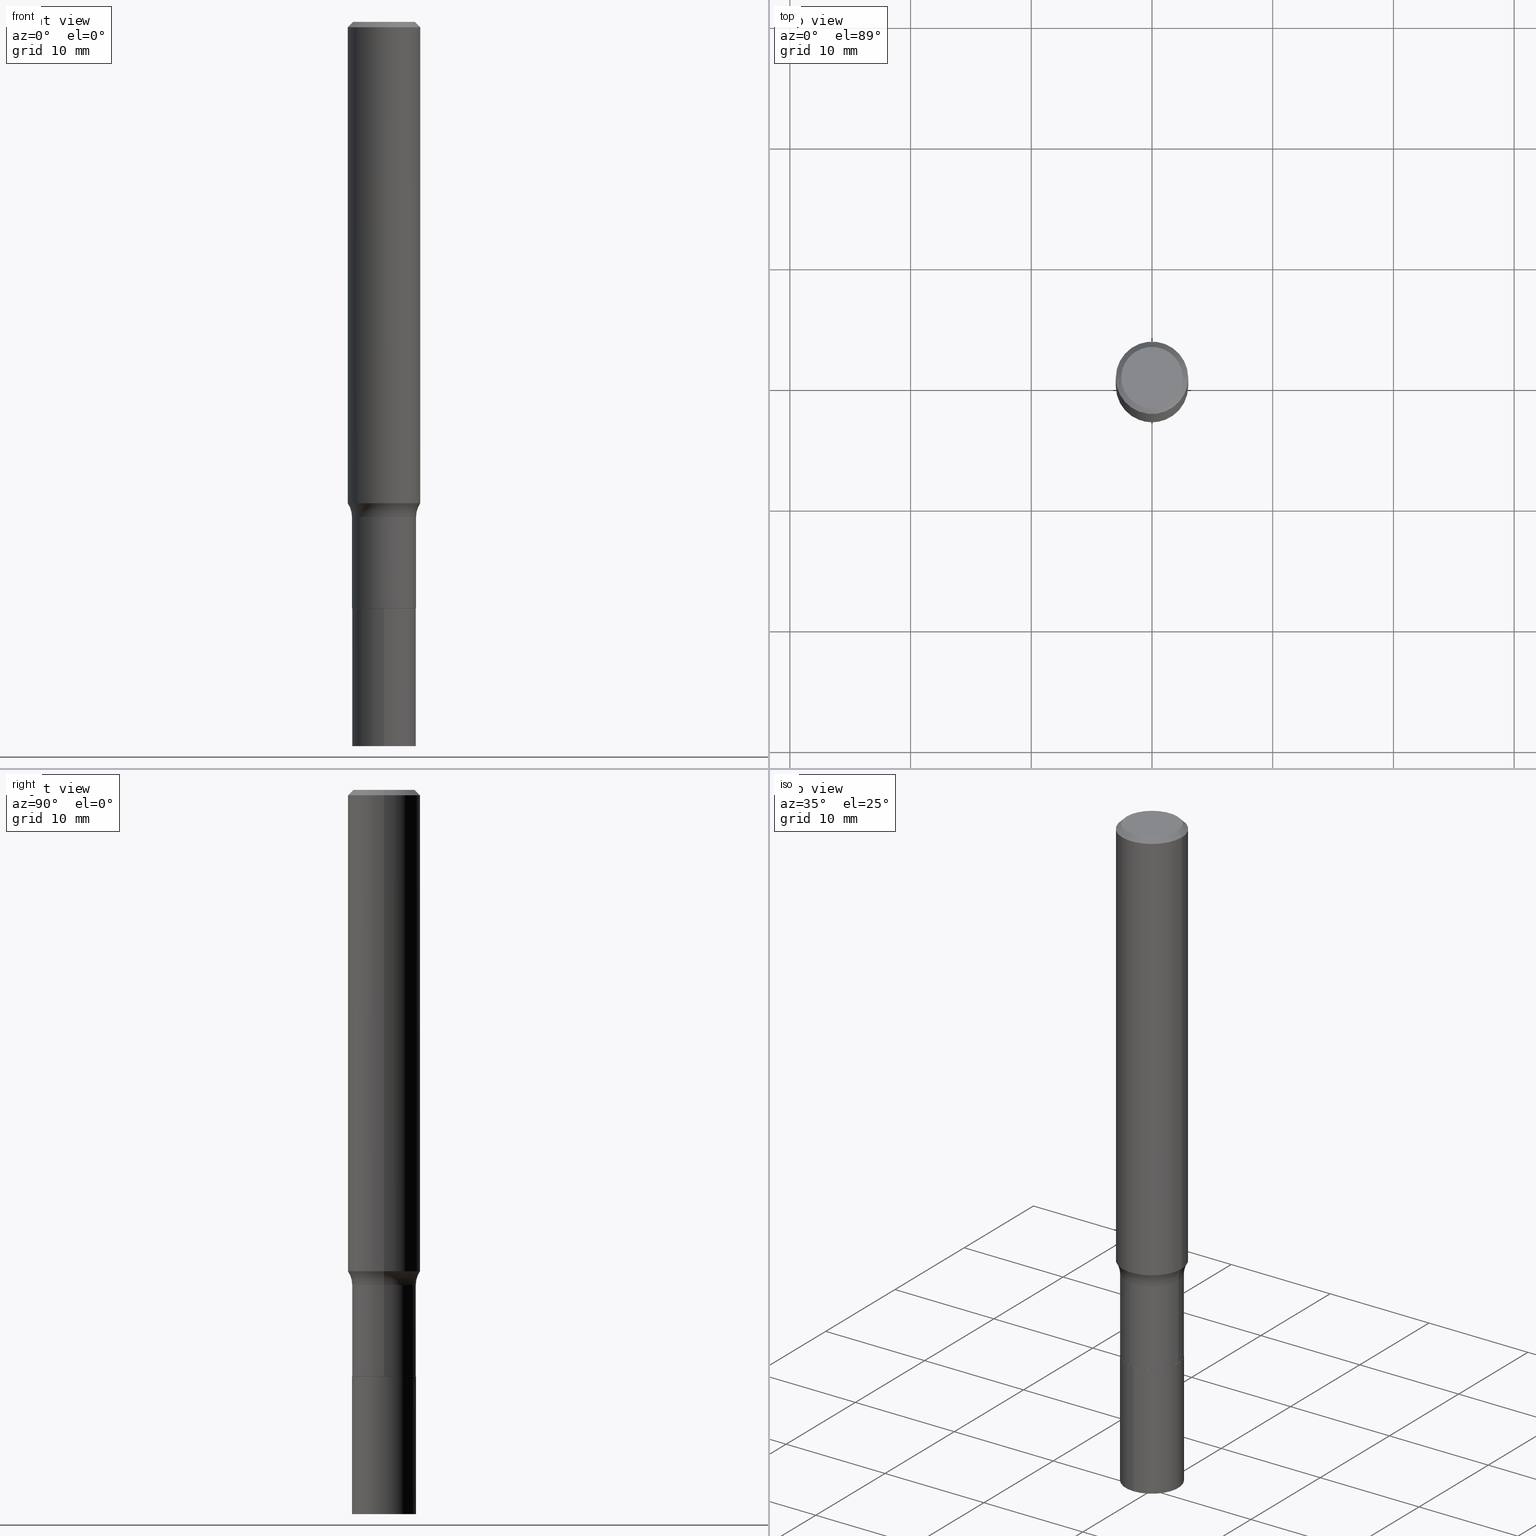
[diagram: canonical four-view strip — front | top / right | iso, engineering-drawing reading convention]
A machine part, canonical four-view strip (front | top / right | iso — engineering-drawing reading convention). The complete STEP part file that produces these views, byte-faithful:
ISO-10303-21;
HEADER;
FILE_DESCRIPTION (( 'STEP AP203' ),
    '1' );
FILE_NAME ('58507.STEP',
    '2024-04-19T14:40:32',
    ( '' ),
    ( '' ),
    'SwSTEP 2.0',
    'SolidWorks 2023',
    '' );
FILE_SCHEMA (( 'CONFIG_CONTROL_DESIGN' ));
ENDSEC;

DATA;
#1 = DIRECTION ( 'NONE',  ( -2.445468806185136597E-29, 3.491481338843145583E-15, 1.000000000000000000 ) ) ;
#2 = ADVANCED_FACE ( 'NONE', ( #59 ), #193, .T. ) ;
#3 = AXIS2_PLACEMENT_3D ( 'NONE', #374, #48, #163 ) ;
#4 = PERSON_AND_ORGANIZATION_ROLE ( 'creator' ) ;
#5 = CARTESIAN_POINT ( 'NONE',  ( 4.332147990156996744E-31, -6.185159191760670395E-17, -0.01771500000000010913 ) ) ;
#6 = SHAPE_DEFINITION_REPRESENTATION ( #417, #340 ) ;
#7 = CARTESIAN_POINT ( 'NONE',  ( -0.1180999999999999966, -1.932900039203968649E-15, -0.01771500000000010913 ) ) ;
#8 = CARTESIAN_POINT ( 'NONE',  ( -0.1180999999999999966, 7.628363003171413738E-16, -0.01771500000000010913 ) ) ;
#9 = LOCAL_TIME ( 10, 40, 32.00000000000000000, #76 ) ;
#10 = DIRECTION ( 'NONE',  ( -2.445468806185136877E-29, 3.491481338843145188E-15, 1.000000000000000000 ) ) ;
#11 = DIRECTION ( 'NONE',  ( 1.000000000000000000, -6.982962677686265922E-15, 4.876176775795935793E-29 ) ) ;
#12 = EDGE_LOOP ( 'NONE', ( #275, #68, #190, #373 ) ) ;
#13 = CARTESIAN_POINT ( 'NONE',  ( 0.1039999999999999813, -7.406130215954078619E-15, -1.913200000000000234 ) ) ;
#14 = ORIENTED_EDGE ( 'NONE', *, *, #376, .T. ) ;
#15 = DIRECTION ( 'NONE',  ( -2.445468806185136597E-29, 3.491481338843145583E-15, 1.000000000000000000 ) ) ;
#16 = CC_DESIGN_APPROVAL ( #446, ( #339 ) ) ;
#17 = ORIENTED_EDGE ( 'NONE', *, *, #419, .T. ) ;
#18 = EDGE_CURVE ( 'NONE', #212, #413, #101, .T. ) ;
#19 = FACE_OUTER_BOUND ( 'NONE', #106, .T. ) ;
#20 = VECTOR ( 'NONE', #31, 39.37007874015748143 ) ;
#21 = ORIENTED_EDGE ( 'NONE', *, *, #51, .F. ) ;
#22 =( NAMED_UNIT ( * ) PLANE_ANGLE_UNIT ( ) SI_UNIT ( $, .RADIAN. ) );
#23 = CARTESIAN_POINT ( 'NONE',  ( -0.1039999999999999813, -5.940937652284203041E-15, -1.913200000000000234 ) ) ;
#24 = DIRECTION ( 'NONE',  ( 1.000000000000000000, -6.982962677686266711E-15, 4.875668750515085695E-29 ) ) ;
#25 = VERTEX_POINT ( 'NONE', #312 ) ;
#26 = MECHANICAL_CONTEXT ( 'NONE', #153, 'mechanical' ) ;
#27 = CIRCLE ( 'NONE', #348, 0.1181000000000001909 ) ;
#28 = EDGE_LOOP ( 'NONE', ( #88, #95, #353, #97 ) ) ;
#29 = CIRCLE ( 'NONE', #329, 0.08000000000000002942 ) ;
#30 = EDGE_LOOP ( 'NONE', ( #343, #233, #320, #140 ) ) ;
#31 = DIRECTION ( 'NONE',  ( -2.445468806185136877E-29, 3.491481338843145188E-15, 1.000000000000000000 ) ) ;
#32 = EDGE_CURVE ( 'NONE', #425, #138, #127, .T. ) ;
#33 = COORDINATED_UNIVERSAL_TIME_OFFSET ( 5, 0, .BEHIND. ) ;
#34 = CARTESIAN_POINT ( 'NONE',  ( 3.839823590373551639E-29, -5.482250428355689861E-15, -1.570178928744370150 ) ) ;
#35 = AXIS2_PLACEMENT_3D ( 'NONE', #75, #1, #401 ) ;
#36 = EDGE_CURVE ( 'NONE', #208, #425, #259, .T. ) ;
#37 = LOCAL_TIME ( 10, 40, 32.00000000000000000, #326 ) ;
#38 = PERSON_AND_ORGANIZATION_ROLE ( 'design_supplier' ) ;
#39 = DIRECTION ( 'NONE',  ( -2.445468806185136597E-29, 3.491481338843145583E-15, 1.000000000000000000 ) ) ;
#40 = CC_DESIGN_DATE_AND_TIME_ASSIGNMENT ( #262, #431, ( #339 ) ) ;
#41 = DATE_AND_TIME ( #284, #427 ) ;
#42 = DIRECTION ( 'NONE',  ( -6.982962677686266711E-15, -1.000000000000000000, 3.491481338843145583E-15 ) ) ;
#43 = APPLICATION_CONTEXT ( 'configuration controlled 3d designs of mechanical parts and assemblies' ) ;
#44 = CARTESIAN_POINT ( 'NONE',  ( 0.000000000000000000, 0.000000000000000000, 0.000000000000000000 ) ) ;
#45 = VECTOR ( 'NONE', #145, 39.37007874015748143 ) ;
#46 = DIRECTION ( 'NONE',  ( 1.000000000000000000, -6.982962677686269077E-15, 0.000000000000000000 ) ) ;
#47 = ORIENTED_EDGE ( 'NONE', *, *, #18, .T. ) ;
#48 = DIRECTION ( 'NONE',  ( -2.445468806185136597E-29, 3.491481338843145583E-15, 1.000000000000000000 ) ) ;
#49 = ORIENTED_EDGE ( 'NONE', *, *, #331, .F. ) ;
#50 = DIRECTION ( 'NONE',  ( -2.445468806185136597E-29, 3.491481338843145583E-15, 1.000000000000000000 ) ) ;
#51 = EDGE_CURVE ( 'NONE', #25, #135, #176, .T. ) ;
#52 = VECTOR ( 'NONE', #10, 39.37007874015748143 ) ;
#53 = DIRECTION ( 'NONE',  ( -2.426571974108162816E-29, 3.518542677918260450E-15, 1.000000000000000000 ) ) ;
#54 = EDGE_LOOP ( 'NONE', ( #387, #205, #375, #355 ) ) ;
#55 = PRODUCT_RELATED_PRODUCT_CATEGORY ( 'detail', '', ( #222 ) ) ;
#56 = CARTESIAN_POINT ( 'NONE',  ( 4.678670919993403663E-29, -6.679902097474707102E-15, -1.913200000000000234 ) ) ;
#57 = LINE ( 'NONE', #238, #204 ) ;
#58 = EDGE_CURVE ( 'NONE', #334, #174, #29, .T. ) ;
#59 = FACE_OUTER_BOUND ( 'NONE', #54, .T. ) ;
#60 = AXIS2_PLACEMENT_3D ( 'NONE', #436, #254, #225 ) ;
#61 = DIRECTION ( 'NONE',  ( -2.445468806185136597E-29, 3.491481338843145583E-15, 1.000000000000000000 ) ) ;
#62 = ORIENTED_EDGE ( 'NONE', *, *, #368, .T. ) ;
#63 = PRODUCT_DEFINITION ( 'UNKNOWN', '', #151, #351 ) ;
#64 = DIRECTION ( 'NONE',  ( 0.7071067811866320607, -2.468850131083142557E-15, 0.7071067811864629737 ) ) ;
#65 = DIRECTION ( 'NONE',  ( 1.000000000000000000, -6.982962677686266711E-15, 0.000000000000000000 ) ) ;
#66 = PERSON ( 'UNSPECIFIED', 'UNSPECIFIED', 'UNSPECIFIED', ('UNSPECIFIED'), ('UNSPECIFIED'), ('UNSPECIFIED') ) ;
#67 = LENGTH_MEASURE_WITH_UNIT ( LENGTH_MEASURE( 0.02539999999999999897 ), #203 );
#68 = ORIENTED_EDGE ( 'NONE', *, *, #141, .T. ) ;
#69 = EDGE_CURVE ( 'NONE', #208, #395, #142, .T. ) ;
#70 = CARTESIAN_POINT ( 'NONE',  ( 0.1044999999999999540, -6.367763665782127275E-15, -1.614800000000000457 ) ) ;
#71 = ORIENTED_EDGE ( 'NONE', *, *, #121, .T. ) ;
#72 = AXIS2_PLACEMENT_3D ( 'NONE', #423, #313, #98 ) ;
#73 = DIRECTION ( 'NONE',  ( -6.982962677686265922E-15, -1.000000000000000000, 3.518542677918260450E-15 ) ) ;
#74 = PERSON_AND_ORGANIZATION_ROLE ( 'design_owner' ) ;
#75 = CARTESIAN_POINT ( 'NONE',  ( 3.948943028227760097E-29, -5.638044065963912751E-15, -1.614800000000000457 ) ) ;
#76 = COORDINATED_UNIVERSAL_TIME_OFFSET ( 5, 0, .BEHIND. ) ;
#77 = FACE_OUTER_BOUND ( 'NONE', #197, .T. ) ;
#78 = CALENDAR_DATE ( 2024, 19, 4 ) ;
#79 = CARTESIAN_POINT ( 'NONE',  ( -0.1039999999999999813, -5.938288425110091840E-15, -1.913200000000000234 ) ) ;
#80 = CARTESIAN_POINT ( 'NONE',  ( 0.1044999999999999679, -7.297195998182146228E-16, 5.095604730706752119E-30 ) ) ;
#81 = EDGE_CURVE ( 'NONE', #319, #212, #426, .T. ) ;
#82 = FACE_OUTER_BOUND ( 'NONE', #389, .T. ) ;
#83 = AXIS2_PLACEMENT_3D ( 'NONE', #263, #291, #227 ) ;
#84 = ORGANIZATION ( 'UNSPECIFIED', 'UNSPECIFIED', '' ) ;
#85 = DIRECTION ( 'NONE',  ( -2.445468806185136597E-29, 3.491481338843145583E-15, 1.000000000000000000 ) ) ;
#86 = ADVANCED_FACE ( 'NONE', ( #77 ), #434, .F. ) ;
#87 = DIRECTION ( 'NONE',  ( 1.000000000000000000, -6.982962677686269077E-15, 0.000000000000000000 ) ) ;
#88 = ORIENTED_EDGE ( 'NONE', *, *, #459, .T. ) ;
#89 = CARTESIAN_POINT ( 'NONE',  ( 3.507850874923593654E-46, -5.008281372579124849E-32, -1.434428795841294606E-17 ) ) ;
#90 = CC_DESIGN_PERSON_AND_ORGANIZATION_ASSIGNMENT ( #177, #402, ( #339 ) ) ;
#91 = CIRCLE ( 'NONE', #172, 0.1044999999999999818 ) ;
#92 = EDGE_CURVE ( 'NONE', #345, #395, #432, .T. ) ;
#93 = PLANE ( 'NONE',  #441 ) ;
#94 = AXIS2_PLACEMENT_3D ( 'NONE', #378, #371, #414 ) ;
#95 = ORIENTED_EDGE ( 'NONE', *, *, #206, .T. ) ;
#96 = FACE_OUTER_BOUND ( 'NONE', #305, .T. ) ;
#97 = ORIENTED_EDGE ( 'NONE', *, *, #36, .F. ) ;
#98 = DIRECTION ( 'NONE',  ( -6.982962677686265922E-15, -1.000000000000000000, 2.614208606377285061E-15 ) ) ;
#99 = ORIENTED_EDGE ( 'NONE', *, *, #81, .T. ) ;
#100 = DIRECTION ( 'NONE',  ( -6.982962677686265922E-15, -1.000000000000000000, 2.614208606377285061E-15 ) ) ;
#101 = LINE ( 'NONE', #23, #260 ) ;
#102 = CC_DESIGN_APPROVAL ( #341, ( #63 ) ) ;
#103 = CARTESIAN_POINT ( 'NONE',  ( 0.1003850000000000159, -7.803837484803599345E-16, -2.868857591682071522E-17 ) ) ;
#104 = EDGE_LOOP ( 'NONE', ( #310, #62, #162, #430 ) ) ;
#105 = DIRECTION ( 'NONE',  ( 1.000000000000000000, 0.000000000000000000, 0.000000000000000000 ) ) ;
#106 = EDGE_LOOP ( 'NONE', ( #99, #47, #450, #171 ) ) ;
#107 = VECTOR ( 'NONE', #293, 39.37007874015748854 ) ;
#108 = CARTESIAN_POINT ( 'NONE',  ( -0.1181000000000001077, 8.391509709326790846E-16, -5.809262341591049389E-30 ) ) ;
#109 = AXIS2_PLACEMENT_3D ( 'NONE', #445, #266, #189 ) ;
#110 = APPROVAL_DATE_TIME ( #363, #245 ) ;
#111 = CYLINDRICAL_SURFACE ( 'NONE', #447, 0.1044999999999999679 ) ;
#112 = DIRECTION ( 'NONE',  ( -1.000000000000000000, 6.982962677686266711E-15, 0.000000000000000000 ) ) ;
#113 = APPROVAL_STATUS ( 'not_yet_approved' ) ;
#114 = DIRECTION ( 'NONE',  ( 1.000000000000000000, -6.982962677686266711E-15, 0.000000000000000000 ) ) ;
#115 = CIRCLE ( 'NONE', #379, 0.1180999999999999966 ) ;
#116 = APPROVAL_PERSON_ORGANIZATION ( #217, #446, #440 ) ;
#117 = CARTESIAN_POINT ( 'NONE',  ( -0.1044999999999999540, -5.415583052515295399E-15, -1.614800000000000457 ) ) ;
#118 = EDGE_CURVE ( 'NONE', #422, #25, #455, .T. ) ;
#119 = DIRECTION ( 'NONE',  ( 2.438088387897960049E-29, -3.491481338843145188E-15, -1.000000000000000000 ) ) ;
#120 = CC_DESIGN_PERSON_AND_ORGANIZATION_ASSIGNMENT ( #287, #4, ( #63 ) ) ;
#121 = EDGE_CURVE ( 'NONE', #334, #208, #27, .T. ) ;
#122 = CLOSED_SHELL ( 'NONE', ( #265, #188, #283, #297, #150, #241, #251, #226, #2, #303, #256, #248 ) ) ;
#123 = AXIS2_PLACEMENT_3D ( 'NONE', #443, #410, #126 ) ;
#124 = EDGE_CURVE ( 'NONE', #174, #395, #409, .T. ) ;
#125 = PLANE ( 'NONE',  #165 ) ;
#126 = DIRECTION ( 'NONE',  ( 1.000000000000000000, -6.982962677686266711E-15, 4.876176775795935793E-29 ) ) ;
#127 = CIRCLE ( 'NONE', #433, 0.1180999999999999966 ) ;
#128 = DIRECTION ( 'NONE',  ( -2.445468806185136597E-29, 3.491481338843145583E-15, 1.000000000000000000 ) ) ;
#129 = VECTOR ( 'NONE', #64, 39.37007874015748143 ) ;
#130 = DIRECTION ( 'NONE',  ( -2.445468806185136597E-29, 3.491481338843145583E-15, 1.000000000000000000 ) ) ;
#131 = EDGE_LOOP ( 'NONE', ( #380, #462, #235, #468 ) ) ;
#132 = DIRECTION ( 'NONE',  ( 1.000000000000000000, -6.982962677686266711E-15, 4.875668750515085695E-29 ) ) ;
#133 = ORIENTED_EDGE ( 'NONE', *, *, #81, .F. ) ;
#134 =( NAMED_UNIT ( * ) SI_UNIT ( $, .STERADIAN. ) SOLID_ANGLE_UNIT ( ) );
#135 = VERTEX_POINT ( 'NONE', #184 ) ;
#136 = AXIS2_PLACEMENT_3D ( 'NONE', #249, #456, #24 ) ;
#137 = CARTESIAN_POINT ( 'NONE',  ( -0.1044999999999999818, -5.415583052515295399E-15, -1.912700000000000289 ) ) ;
#138 = VERTEX_POINT ( 'NONE', #7 ) ;
#139 = CC_DESIGN_PERSON_AND_ORGANIZATION_ASSIGNMENT ( #435, #38, ( #151 ) ) ;
#140 = ORIENTED_EDGE ( 'NONE', *, *, #124, .F. ) ;
#141 = EDGE_CURVE ( 'NONE', #413, #174, #328, .T. ) ;
#142 = CIRCLE ( 'NONE', #267, 0.08000000000000002942 ) ;
#143 = CARTESIAN_POINT ( 'NONE',  ( -0.1844999999999999418, -4.327092718486528716E-15, -1.614800000000000457 ) ) ;
#144 = APPROVAL_DATE_TIME ( #41, #446 ) ;
#145 = DIRECTION ( 'NONE',  ( -2.426571974108162816E-29, 3.518542677918260450E-15, 1.000000000000000000 ) ) ;
#146 = APPROVAL_ROLE ( '' ) ;
#147 = DIRECTION ( 'NONE',  ( 1.000000000000000000, -6.982962677686266711E-15, 4.876176775795936353E-29 ) ) ;
#148 = APPROVAL_STATUS ( 'not_yet_approved' ) ;
#149 = DIRECTION ( 'NONE',  ( -1.000000000000000000, 7.105427357601001859E-15, 0.000000000000000000 ) ) ;
#150 = ADVANCED_FACE ( 'NONE', ( #285 ), #111, .T. ) ;
#151 = PRODUCT_DEFINITION_FORMATION_WITH_SPECIFIED_SOURCE ( 'ANY', '', #222, .NOT_KNOWN. ) ;
#152 = CARTESIAN_POINT ( 'NONE',  ( 4.678670919993403663E-29, -6.679902097474707102E-15, -1.913200000000000234 ) ) ;
#153 = APPLICATION_CONTEXT ( 'configuration controlled 3d designs of mechanical parts and assemblies' ) ;
#154 = FACE_OUTER_BOUND ( 'NONE', #384, .T. ) ;
#155 = DIMENSIONAL_EXPONENTS ( 1.000000000000000000, 0.000000000000000000, 0.000000000000000000, 0.000000000000000000, 0.000000000000000000, 0.000000000000000000, 0.000000000000000000 ) ;
#156 = CARTESIAN_POINT ( 'NONE',  ( -0.1181000000000002048, -4.643099457423009297E-15, -1.570178928744370150 ) ) ;
#157 = ORIENTED_EDGE ( 'NONE', *, *, #357, .T. ) ;
#158 = VECTOR ( 'NONE', #399, 39.37007874015748143 ) ;
#159 = EDGE_CURVE ( 'NONE', #175, #138, #359, .T. ) ;
#160 = LOCAL_TIME ( 10, 40, 32.00000000000000000, #400 ) ;
#161 = DIRECTION ( 'NONE',  ( -2.426571974108162816E-29, 3.518542677918260450E-15, 1.000000000000000000 ) ) ;
#162 = ORIENTED_EDGE ( 'NONE', *, *, #32, .T. ) ;
#163 = DIRECTION ( 'NONE',  ( 1.000000000000000000, -6.982962677686265922E-15, 4.883557194083112901E-29 ) ) ;
#164 = ORIENTED_EDGE ( 'NONE', *, *, #318, .F. ) ;
#165 = AXIS2_PLACEMENT_3D ( 'NONE', #344, #333, #11 ) ;
#166 = UNCERTAINTY_MEASURE_WITH_UNIT (LENGTH_MEASURE( 1.000000000000000082E-05 ), #272, 'distance_accuracy_value', 'NONE');
#167 = ORIENTED_EDGE ( 'NONE', *, *, #273, .T. ) ;
#168 = EDGE_CURVE ( 'NONE', #395, #174, #243, .T. ) ;
#169 = LINE ( 'NONE', #274, #129 ) ;
#170 = ORIENTED_EDGE ( 'NONE', *, *, #69, .T. ) ;
#171 = ORIENTED_EDGE ( 'NONE', *, *, #419, .F. ) ;
#172 = AXIS2_PLACEMENT_3D ( 'NONE', #453, #377, #304 ) ;
#173 = CARTESIAN_POINT ( 'NONE',  ( 0.000000000000000000, 0.000000000000000000, 0.000000000000000000 ) ) ;
#174 = VERTEX_POINT ( 'NONE', #117 ) ;
#175 = VERTEX_POINT ( 'NONE', #296 ) ;
#176 = LINE ( 'NONE', #325, #45 ) ;
#177 = PERSON_AND_ORGANIZATION ( #66, #84 ) ;
#178 = AXIS2_PLACEMENT_3D ( 'NONE', #330, #403, #257 ) ;
#179 = DIRECTION ( 'NONE',  ( 2.445468806185136597E-29, -3.491481338843145583E-15, -1.000000000000000000 ) ) ;
#180 = AXIS2_PLACEMENT_3D ( 'NONE', #299, #416, #46 ) ;
#181 = CALENDAR_DATE ( 2024, 19, 4 ) ;
#182 = CARTESIAN_POINT ( 'NONE',  ( 0.1181000000000001077, -8.246878922347488542E-16, 5.758764772215005345E-30 ) ) ;
#183 = DATE_AND_TIME ( #294, #9 ) ;
#184 = CARTESIAN_POINT ( 'NONE',  ( 7.425171588693624475E-16, 0.1044999999999933066, -1.913200000000000456 ) ) ;
#185 = CARTESIAN_POINT ( 'NONE',  ( 1.464508944637486119E-29, -1.442286078859970335E-14, -2.362200000000000077 ) ) ;
#186 = CIRCLE ( 'NONE', #109, 0.1045000000000000095 ) ;
#187 = FACE_OUTER_BOUND ( 'NONE', #30, .T. ) ;
#188 = ADVANCED_FACE ( 'NONE', ( #442 ), #252, .T. ) ;
#189 = DIRECTION ( 'NONE',  ( 1.000000000000000000, -6.982962677686262766E-15, 0.000000000000000000 ) ) ;
#190 = ORIENTED_EDGE ( 'NONE', *, *, #168, .F. ) ;
#191 = FACE_OUTER_BOUND ( 'NONE', #458, .T. ) ;
#192 = ORIENTED_EDGE ( 'NONE', *, *, #228, .F. ) ;
#193 = CONICAL_SURFACE ( 'NONE', #463, 0.1180999999999999966, 0.7853981633974456145 ) ;
#194 = CONICAL_SURFACE ( 'NONE', #411, 0.1039999999999999813, 0.7853981633975678500 ) ;
#195 = AXIS2_PLACEMENT_3D ( 'NONE', #311, #460, #100 ) ;
#196 = DIRECTION ( 'NONE',  ( -2.445468806185136597E-29, 3.491481338843145583E-15, 1.000000000000000000 ) ) ;
#197 = EDGE_LOOP ( 'NONE', ( #358, #465 ) ) ;
#198 = FACE_OUTER_BOUND ( 'NONE', #131, .T. ) ;
#199 = ORIENTED_EDGE ( 'NONE', *, *, #118, .T. ) ;
#200 = CYLINDRICAL_SURFACE ( 'NONE', #195, 0.1045000000000000095 ) ;
#201 = CC_DESIGN_DATE_AND_TIME_ASSIGNMENT ( #183, #292, ( #63 ) ) ;
#202 = CARTESIAN_POINT ( 'NONE',  ( 4.332147990156996744E-31, -6.185159191760670395E-17, -0.01771500000000010913 ) ) ;
#203 =( LENGTH_UNIT ( ) NAMED_UNIT ( * ) SI_UNIT ( $, .METRE. ) );
#204 = VECTOR ( 'NONE', #240, 39.37007874015748854 ) ;
#205 = ORIENTED_EDGE ( 'NONE', *, *, #357, .F. ) ;
#206 = EDGE_CURVE ( 'NONE', #334, #138, #438, .T. ) ;
#207 = DIRECTION ( 'NONE',  ( -2.426571974108162816E-29, 3.518542677918260450E-15, 1.000000000000000000 ) ) ;
#208 = VERTEX_POINT ( 'NONE', #365 ) ;
#209 = EDGE_LOOP ( 'NONE', ( #157, #14 ) ) ;
#210 = AXIS2_PLACEMENT_3D ( 'NONE', #300, #237, #269 ) ;
#211 = CARTESIAN_POINT ( 'NONE',  ( 4.678670919993403663E-29, -6.679902097474707102E-15, -1.913200000000000234 ) ) ;
#212 = VERTEX_POINT ( 'NONE', #79 ) ;
#213 = CIRCLE ( 'NONE', #268, 0.1181000000000001909 ) ;
#214 = APPROVAL_STATUS ( 'not_yet_approved' ) ;
#215 = CARTESIAN_POINT ( 'NONE',  ( -0.1044999999999999679, 7.425171588693044663E-16, -5.140287169316375031E-30 ) ) ;
#216 = MANIFOLD_SOLID_BREP ( 'Body-Move/Copy2[1]', #404 ) ;
#217 = PERSON_AND_ORGANIZATION ( #66, #84 ) ;
#218 = DIRECTION ( 'NONE',  ( -2.445468806185136877E-29, 3.491481338843145188E-15, 1.000000000000000000 ) ) ;
#219 = MANIFOLD_SOLID_BREP ( 'Body-Move/Copy2[2]', #122 ) ;
#220 = PERSON_AND_ORGANIZATION ( #66, #84 ) ;
#221 = DIRECTION ( 'NONE',  ( -2.445468806185136597E-29, 3.491481338843145583E-15, 1.000000000000000000 ) ) ;
#222 = PRODUCT ( '58507', '58507', '', ( #26 ) ) ;
#223 = EDGE_CURVE ( 'NONE', #138, #425, #115, .T. ) ;
#224 = SECURITY_CLASSIFICATION_LEVEL ( 'unclassified' ) ;
#225 = DIRECTION ( 'NONE',  ( 1.000000000000000000, -6.982962677686266711E-15, 0.000000000000000000 ) ) ;
#226 = ADVANCED_FACE ( 'NONE', ( #261 ), #406, .T. ) ;
#227 = DIRECTION ( 'NONE',  ( -6.982962677686265922E-15, -1.000000000000000000, 2.614208606377285061E-15 ) ) ;
#228 = EDGE_CURVE ( 'NONE', #135, #308, #91, .T. ) ;
#229 = CYLINDRICAL_SURFACE ( 'NONE', #123, 0.1181000000000001077 ) ;
#230 = DIRECTION ( 'NONE',  ( 1.000000000000000000, -6.982962677686266711E-15, 4.876176775795935793E-29 ) ) ;
#231 = EDGE_LOOP ( 'NONE', ( #133, #280 ) ) ;
#232 = CARTESIAN_POINT ( 'NONE',  ( 4.678670919993403663E-29, -6.679902097474707102E-15, -1.913200000000000234 ) ) ;
#233 = ORIENTED_EDGE ( 'NONE', *, *, #331, .T. ) ;
#234 = CARTESIAN_POINT ( 'NONE',  ( -7.297195998181678828E-16, -0.1045000000000066709, -1.913200000000000012 ) ) ;
#235 = ORIENTED_EDGE ( 'NONE', *, *, #124, .T. ) ;
#236 = APPROVAL_PERSON_ORGANIZATION ( #220, #341, #323 ) ;
#237 = DIRECTION ( 'NONE',  ( -2.445468806185136597E-29, 3.491481338843145583E-15, 1.000000000000000000 ) ) ;
#238 = CARTESIAN_POINT ( 'NONE',  ( 0.1180999999999999966, -8.720764054544245267E-16, -0.01771500000000010913 ) ) ;
#239 = ORIENTED_EDGE ( 'NONE', *, *, #58, .F. ) ;
#240 = DIRECTION ( 'NONE',  ( 0.7071067811865454633, -7.319954787623246579E-15, -0.7071067811865493491 ) ) ;
#241 = ADVANCED_FACE ( 'NONE', ( #187 ), #448, .T. ) ;
#242 = DIRECTION ( 'NONE',  ( 2.445468806185136597E-29, -3.491481338843145583E-15, -1.000000000000000000 ) ) ;
#243 = CIRCLE ( 'NONE', #35, 0.1044999999999999540 ) ;
#244 = CARTESIAN_POINT ( 'NONE',  ( 4.332147990156996744E-31, -6.185159191760670395E-17, -0.01771500000000010913 ) ) ;
#245 = APPROVAL ( #113, 'UNSPECIFIED' ) ;
#246 = CARTESIAN_POINT ( 'NONE',  ( 4.677448185590311983E-29, -6.678156356805286387E-15, -1.912700000000000289 ) ) ;
#247 = EDGE_LOOP ( 'NONE', ( #199, #314, #461, #164 ) ) ;
#248 = ADVANCED_FACE ( 'NONE', ( #82 ), #356, .T. ) ;
#249 = CARTESIAN_POINT ( 'NONE',  ( 7.015701749847187307E-46, -1.001656274515824970E-31, -2.868857591682589212E-17 ) ) ;
#250 = ORIENTED_EDGE ( 'NONE', *, *, #459, .F. ) ;
#251 = ADVANCED_FACE ( 'NONE', ( #191 ), #439, .F. ) ;
#252 = CONICAL_SURFACE ( 'NONE', #362, 0.1180999999999999966, 0.7853981633974456145 ) ;
#253 = PERSON_AND_ORGANIZATION ( #66, #84 ) ;
#254 = DIRECTION ( 'NONE',  ( -2.445468806185136597E-29, 3.491481338843145583E-15, 1.000000000000000000 ) ) ;
#255 = CALENDAR_DATE ( 2024, 19, 4 ) ;
#256 = ADVANCED_FACE ( 'NONE', ( #337 ), #125, .F. ) ;
#257 = DIRECTION ( 'NONE',  ( 1.000000000000000000, -6.982962677686269077E-15, 0.000000000000000000 ) ) ;
#258 = DATE_AND_TIME ( #181, #37 ) ;
#259 = LINE ( 'NONE', #182, #20 ) ;
#260 = VECTOR ( 'NONE', #277, 39.37007874015748143 ) ;
#261 = FACE_OUTER_BOUND ( 'NONE', #454, .T. ) ;
#262 = DATE_AND_TIME ( #255, #324 ) ;
#263 = CARTESIAN_POINT ( 'NONE',  ( 5.768201736367969540E-29, -8.259727759860008173E-15, -2.362200000000000522 ) ) ;
#264 = CARTESIAN_POINT ( 'NONE',  ( -7.297195998181680800E-16, -0.1045000000000066848, -1.913200000000000012 ) ) ;
#265 = ADVANCED_FACE ( 'NONE', ( #19 ), #194, .T. ) ;
#266 = DIRECTION ( 'NONE',  ( -2.445468806185136597E-29, 3.491481338843145583E-15, 1.000000000000000000 ) ) ;
#267 = AXIS2_PLACEMENT_3D ( 'NONE', #289, #42, #321 ) ;
#268 = AXIS2_PLACEMENT_3D ( 'NONE', #276, #130, #346 ) ;
#269 = DIRECTION ( 'NONE',  ( 1.000000000000000000, -6.982962677686265922E-15, 4.883557194083112901E-29 ) ) ;
#270 = PLANE ( 'NONE',  #94 ) ;
#271 = FACE_OUTER_BOUND ( 'NONE', #209, .T. ) ;
#272 =( CONVERSION_BASED_UNIT ( 'INCH', #67 ) LENGTH_UNIT ( ) NAMED_UNIT ( #155 ) );
#273 = EDGE_CURVE ( 'NONE', #308, #135, #396, .T. ) ;
#274 = CARTESIAN_POINT ( 'NONE',  ( 0.1039999999999999813, -7.406130215954078619E-15, -1.913200000000000234 ) ) ;
#275 = ORIENTED_EDGE ( 'NONE', *, *, #466, .T. ) ;
#276 = CARTESIAN_POINT ( 'NONE',  ( 3.839823590373551639E-29, -5.482250428355689861E-15, -1.570178928744370150 ) ) ;
#277 = DIRECTION ( 'NONE',  ( -0.7071067811866320607, 7.493145998870660238E-15, 0.7071067811864629737 ) ) ;
#278 = CARTESIAN_POINT ( 'NONE',  ( 0.1180999999999999966, -8.865394841523547570E-16, -0.01771500000000010913 ) ) ;
#279 = CC_DESIGN_SECURITY_CLASSIFICATION ( #339, ( #151 ) ) ;
#280 = ORIENTED_EDGE ( 'NONE', *, *, #322, .F. ) ;
#281 = DIRECTION ( 'NONE',  ( 1.000000000000000000, -6.982962677686262766E-15, 0.000000000000000000 ) ) ;
#282 = ORIENTED_EDGE ( 'NONE', *, *, #318, .T. ) ;
#283 = ADVANCED_FACE ( 'NONE', ( #298 ), #229, .T. ) ;
#284 = CALENDAR_DATE ( 2024, 19, 4 ) ;
#285 = FACE_OUTER_BOUND ( 'NONE', #12, .T. ) ;
#286 = AXIS2_PLACEMENT_3D ( 'NONE', #185, #327, #73 ) ;
#287 = PERSON_AND_ORGANIZATION ( #66, #84 ) ;
#288 = CIRCLE ( 'NONE', #180, 0.1039999999999999813 ) ;
#289 = CARTESIAN_POINT ( 'NONE',  ( 0.1844999999999999418, -6.926400679997028139E-15, -1.614800000000000457 ) ) ;
#290 = ADVANCED_FACE ( 'NONE', ( #154 ), #270, .F. ) ;
#291 = DIRECTION ( 'NONE',  ( -2.426571974108162816E-29, 3.518542677918260450E-15, 1.000000000000000000 ) ) ;
#292 = DATE_TIME_ROLE ( 'creation_date' ) ;
#293 = DIRECTION ( 'NONE',  ( -0.7071067811865454633, 2.468850131082235761E-15, -0.7071067811865493491 ) ) ;
#294 = CALENDAR_DATE ( 2024, 19, 4 ) ;
#295 = AXIS2_PLACEMENT_3D ( 'NONE', #451, #85, #342 ) ;
#296 = CARTESIAN_POINT ( 'NONE',  ( -0.1003850000000000159, 7.319105043583386689E-16, -2.868857591683090262E-17 ) ) ;
#297 = ADVANCED_FACE ( 'NONE', ( #198 ), #332, .F. ) ;
#298 = FACE_OUTER_BOUND ( 'NONE', #28, .T. ) ;
#299 = CARTESIAN_POINT ( 'NONE',  ( 4.678670919993403663E-29, -6.679902097474707102E-15, -1.913200000000000234 ) ) ;
#300 = CARTESIAN_POINT ( 'NONE',  ( 3.948943028227760097E-29, -5.638044065963912751E-15, -1.614800000000000457 ) ) ;
#301 = ORIENTED_EDGE ( 'NONE', *, *, #168, .T. ) ;
#302 = CIRCLE ( 'NONE', #72, 0.1045000000000000095 ) ;
#303 = ADVANCED_FACE ( 'NONE', ( #271 ), #93, .F. ) ;
#304 = DIRECTION ( 'NONE',  ( -6.982962677686266711E-15, -1.000000000000000000, 2.614208606377285850E-15 ) ) ;
#305 = EDGE_LOOP ( 'NONE', ( #21, #336, #282, #192 ) ) ;
#306 = LINE ( 'NONE', #264, #309 ) ;
#307 = ORIENTED_EDGE ( 'NONE', *, *, #36, .T. ) ;
#308 = VERTEX_POINT ( 'NONE', #234 ) ;
#309 = VECTOR ( 'NONE', #53, 39.37007874015748143 ) ;
#310 = ORIENTED_EDGE ( 'NONE', *, *, #376, .F. ) ;
#311 = CARTESIAN_POINT ( 'NONE',  ( 4.678670919993403663E-29, -6.679902097474707102E-15, -1.913200000000000234 ) ) ;
#312 = CARTESIAN_POINT ( 'NONE',  ( 7.425171588693569255E-16, 0.1044999999999917384, -2.362200000000000966 ) ) ;
#313 = DIRECTION ( 'NONE',  ( -2.426571974108162816E-29, 3.518542677918260450E-15, 1.000000000000000000 ) ) ;
#314 = ORIENTED_EDGE ( 'NONE', *, *, #51, .T. ) ;
#315 = VECTOR ( 'NONE', #218, 39.37007874015748143 ) ;
#316 = DIRECTION ( 'NONE',  ( 0.000000000000000000, 0.000000000000000000, 1.000000000000000000 ) ) ;
#317 =( GEOMETRIC_REPRESENTATION_CONTEXT ( 3 ) GLOBAL_UNCERTAINTY_ASSIGNED_CONTEXT ( ( #166 ) ) GLOBAL_UNIT_ASSIGNED_CONTEXT ( ( #272, #22, #134 ) ) REPRESENTATION_CONTEXT ( 'NONE', 'WORKASPACE' ) );
#318 = EDGE_CURVE ( 'NONE', #422, #308, #306, .T. ) ;
#319 = VERTEX_POINT ( 'NONE', #13 ) ;
#320 = ORIENTED_EDGE ( 'NONE', *, *, #92, .T. ) ;
#321 = DIRECTION ( 'NONE',  ( 1.000000000000000000, -6.982962677686269077E-15, 0.000000000000000000 ) ) ;
#322 = EDGE_CURVE ( 'NONE', #212, #319, #288, .T. ) ;
#323 = APPROVAL_ROLE ( '' ) ;
#324 = LOCAL_TIME ( 10, 40, 32.00000000000000000, #405 ) ;
#325 = CARTESIAN_POINT ( 'NONE',  ( 7.425171588693514035E-16, 0.1044999999999933343, -1.913200000000000456 ) ) ;
#326 = COORDINATED_UNIVERSAL_TIME_OFFSET ( 5, 0, .BEHIND. ) ;
#327 = DIRECTION ( 'NONE',  ( -2.426571974108162256E-29, 3.518542677918260450E-15, 1.000000000000000000 ) ) ;
#328 = LINE ( 'NONE', #215, #315 ) ;
#329 = AXIS2_PLACEMENT_3D ( 'NONE', #143, #367, #149 ) ;
#330 = CARTESIAN_POINT ( 'NONE',  ( 4.678670919993403663E-29, -6.679902097474707102E-15, -1.913200000000000234 ) ) ;
#331 = EDGE_CURVE ( 'NONE', #413, #345, #186, .T. ) ;
#332 = TOROIDAL_SURFACE ( 'NONE', #3, 0.1844999999999999418, 0.08000000000000002942 ) ;
#333 = DIRECTION ( 'NONE',  ( -2.438088387897960049E-29, 3.491481338843145188E-15, 1.000000000000000000 ) ) ;
#334 = VERTEX_POINT ( 'NONE', #156 ) ;
#335 = DIRECTION ( 'NONE',  ( -1.000000000000000000, 6.982962677686265922E-15, -4.876176775795935793E-29 ) ) ;
#336 = ORIENTED_EDGE ( 'NONE', *, *, #444, .T. ) ;
#337 = FACE_OUTER_BOUND ( 'NONE', #231, .T. ) ;
#338 = ORIENTED_EDGE ( 'NONE', *, *, #223, .F. ) ;
#339 = SECURITY_CLASSIFICATION ( '', '', #224 ) ;
#340 = ADVANCED_BREP_SHAPE_REPRESENTATION ( '58507', ( #216, #219, #372 ), #317 ) ;
#341 = APPROVAL ( #148, 'UNSPECIFIED' ) ;
#342 = DIRECTION ( 'NONE',  ( 1.000000000000000000, -6.982962677686266711E-15, 4.876176775795936353E-29 ) ) ;
#343 = ORIENTED_EDGE ( 'NONE', *, *, #141, .F. ) ;
#344 = CARTESIAN_POINT ( 'NONE',  ( 4.678670919993403663E-29, -6.679902097474707102E-15, -1.913200000000000234 ) ) ;
#345 = VERTEX_POINT ( 'NONE', #394 ) ;
#346 = DIRECTION ( 'NONE',  ( 1.000000000000000000, -6.982962677686269077E-15, 0.000000000000000000 ) ) ;
#347 = ORIENTED_EDGE ( 'NONE', *, *, #206, .F. ) ;
#348 = AXIS2_PLACEMENT_3D ( 'NONE', #34, #221, #407 ) ;
#349 = CC_DESIGN_APPROVAL ( #245, ( #151 ) ) ;
#350 = DIRECTION ( 'NONE',  ( -1.000000000000000000, 6.982962677686266711E-15, 0.000000000000000000 ) ) ;
#351 = DESIGN_CONTEXT ( 'detailed design', #43, 'design' ) ;
#352 = DIRECTION ( 'NONE',  ( -6.982962677686265922E-15, -1.000000000000000000, 2.614208606377285061E-15 ) ) ;
#353 = ORIENTED_EDGE ( 'NONE', *, *, #32, .F. ) ;
#354 = APPLICATION_PROTOCOL_DEFINITION ( 'international standard', 'config_control_design', 1994, #153 ) ;
#355 = ORIENTED_EDGE ( 'NONE', *, *, #223, .T. ) ;
#356 = CONICAL_SURFACE ( 'NONE', #415, 0.1039999999999999813, 0.7853981633975678500 ) ;
#357 = EDGE_CURVE ( 'NONE', #175, #420, #381, .T. ) ;
#358 = ORIENTED_EDGE ( 'NONE', *, *, #118, .F. ) ;
#359 = LINE ( 'NONE', #8, #107 ) ;
#360 = PERSON_AND_ORGANIZATION ( #66, #84 ) ;
#361 = CARTESIAN_POINT ( 'NONE',  ( 4.332147990156996744E-31, -6.185159191760670395E-17, -0.01771500000000010913 ) ) ;
#362 = AXIS2_PLACEMENT_3D ( 'NONE', #361, #179, #112 ) ;
#363 = DATE_AND_TIME ( #78, #160 ) ;
#364 = APPROVAL_PERSON_ORGANIZATION ( #398, #245, #146 ) ;
#365 = CARTESIAN_POINT ( 'NONE',  ( 0.1181000000000002048, -6.306938320590438124E-15, -1.570178928744370150 ) ) ;
#366 = PERSON_AND_ORGANIZATION_ROLE ( 'creator' ) ;
#367 = DIRECTION ( 'NONE',  ( 7.105427357601001859E-15, 1.000000000000000000, -3.491481338843145583E-15 ) ) ;
#368 = EDGE_CURVE ( 'NONE', #420, #425, #57, .T. ) ;
#369 = DIRECTION ( 'NONE',  ( -2.445468806185136597E-29, 3.491481338843145583E-15, 1.000000000000000000 ) ) ;
#370 = AXIS2_PLACEMENT_3D ( 'NONE', #412, #196, #230 ) ;
#371 = DIRECTION ( 'NONE',  ( 2.426571974108162256E-29, -3.518542677918260450E-15, -1.000000000000000000 ) ) ;
#372 = AXIS2_PLACEMENT_3D ( 'NONE', #173, #316, #105 ) ;
#373 = ORIENTED_EDGE ( 'NONE', *, *, #92, .F. ) ;
#374 = CARTESIAN_POINT ( 'NONE',  ( 3.948943028227760097E-29, -5.638044065963912751E-15, -1.614800000000000457 ) ) ;
#375 = ORIENTED_EDGE ( 'NONE', *, *, #159, .T. ) ;
#376 = EDGE_CURVE ( 'NONE', #420, #175, #397, .T. ) ;
#377 = DIRECTION ( 'NONE',  ( -2.426571974108162816E-29, 3.518542677918260450E-15, 1.000000000000000000 ) ) ;
#378 = CARTESIAN_POINT ( 'NONE',  ( 4.678670919993403663E-29, -6.679902097474707102E-15, -1.913200000000000234 ) ) ;
#379 = AXIS2_PLACEMENT_3D ( 'NONE', #5, #39, #114 ) ;
#380 = ORIENTED_EDGE ( 'NONE', *, *, #121, .F. ) ;
#381 = CIRCLE ( 'NONE', #390, 0.1003850000000000159 ) ;
#382 = ADVANCED_FACE ( 'NONE', ( #388 ), #421, .T. ) ;
#383 = DIRECTION ( 'NONE',  ( -6.982962677686266711E-15, -1.000000000000000000, 2.614208606377285850E-15 ) ) ;
#384 = EDGE_LOOP ( 'NONE', ( #167, #392 ) ) ;
#385 = CC_DESIGN_PERSON_AND_ORGANIZATION_ASSIGNMENT ( #253, #74, ( #222 ) ) ;
#386 = CARTESIAN_POINT ( 'NONE',  ( 7.015701749847187307E-46, -1.001656274515824970E-31, -2.868857591682589212E-17 ) ) ;
#387 = ORIENTED_EDGE ( 'NONE', *, *, #368, .F. ) ;
#388 = FACE_OUTER_BOUND ( 'NONE', #247, .T. ) ;
#389 = EDGE_LOOP ( 'NONE', ( #452, #429, #17, #49 ) ) ;
#390 = AXIS2_PLACEMENT_3D ( 'NONE', #386, #128, #132 ) ;
#391 = DIRECTION ( 'NONE',  ( -2.445468806185136597E-29, 3.491481338843145583E-15, 1.000000000000000000 ) ) ;
#392 = ORIENTED_EDGE ( 'NONE', *, *, #228, .T. ) ;
#393 = CC_DESIGN_PERSON_AND_ORGANIZATION_ASSIGNMENT ( #360, #366, ( #151 ) ) ;
#394 = CARTESIAN_POINT ( 'NONE',  ( 0.1045000000000000095, -7.407875956623500911E-15, -1.912700000000000289 ) ) ;
#395 = VERTEX_POINT ( 'NONE', #70 ) ;
#396 = CIRCLE ( 'NONE', #418, 0.1044999999999999818 ) ;
#397 = CIRCLE ( 'NONE', #136, 0.1003850000000000159 ) ;
#398 = PERSON_AND_ORGANIZATION ( #66, #84 ) ;
#399 = DIRECTION ( 'NONE',  ( -2.445468806185136877E-29, 3.491481338843145188E-15, 1.000000000000000000 ) ) ;
#400 = COORDINATED_UNIVERSAL_TIME_OFFSET ( 5, 0, .BEHIND. ) ;
#401 = DIRECTION ( 'NONE',  ( 1.000000000000000000, -6.982962677686266711E-15, 0.000000000000000000 ) ) ;
#402 = PERSON_AND_ORGANIZATION_ROLE ( 'classification_officer' ) ;
#403 = DIRECTION ( 'NONE',  ( -2.445468806185136597E-29, 3.491481338843145583E-15, 1.000000000000000000 ) ) ;
#404 = CLOSED_SHELL ( 'NONE', ( #382, #86, #424, #290 ) ) ;
#405 = COORDINATED_UNIVERSAL_TIME_OFFSET ( 5, 0, .BEHIND. ) ;
#406 = CYLINDRICAL_SURFACE ( 'NONE', #370, 0.1181000000000001077 ) ;
#407 = DIRECTION ( 'NONE',  ( 1.000000000000000000, -6.982962677686269077E-15, 0.000000000000000000 ) ) ;
#408 = DIRECTION ( 'NONE',  ( 1.000000000000000000, -6.982962677686269077E-15, 0.000000000000000000 ) ) ;
#409 = CIRCLE ( 'NONE', #60, 0.1044999999999999540 ) ;
#410 = DIRECTION ( 'NONE',  ( -2.445468806185136597E-29, 3.491481338843145583E-15, 1.000000000000000000 ) ) ;
#411 = AXIS2_PLACEMENT_3D ( 'NONE', #56, #15, #408 ) ;
#412 = CARTESIAN_POINT ( 'NONE',  ( 0.000000000000000000, 0.000000000000000000, 0.000000000000000000 ) ) ;
#413 = VERTEX_POINT ( 'NONE', #137 ) ;
#414 = DIRECTION ( 'NONE',  ( 6.982962677686265922E-15, 1.000000000000000000, -3.518542677918260450E-15 ) ) ;
#415 = AXIS2_PLACEMENT_3D ( 'NONE', #232, #50, #87 ) ;
#416 = DIRECTION ( 'NONE',  ( -2.445468806185136597E-29, 3.491481338843145583E-15, 1.000000000000000000 ) ) ;
#417 = PRODUCT_DEFINITION_SHAPE ( 'NONE', 'NONE',  #63 ) ;
#418 = AXIS2_PLACEMENT_3D ( 'NONE', #152, #161, #383 ) ;
#419 = EDGE_CURVE ( 'NONE', #319, #345, #169, .T. ) ;
#420 = VERTEX_POINT ( 'NONE', #103 ) ;
#421 = CYLINDRICAL_SURFACE ( 'NONE', #449, 0.1045000000000000095 ) ;
#422 = VERTEX_POINT ( 'NONE', #428 ) ;
#423 = CARTESIAN_POINT ( 'NONE',  ( 5.768201736367969540E-29, -8.259727759860008173E-15, -2.362200000000000522 ) ) ;
#424 = ADVANCED_FACE ( 'NONE', ( #96 ), #200, .T. ) ;
#425 = VERTEX_POINT ( 'NONE', #278 ) ;
#426 = CIRCLE ( 'NONE', #178, 0.1039999999999999813 ) ;
#427 = LOCAL_TIME ( 10, 40, 32.00000000000000000, #33 ) ;
#428 = CARTESIAN_POINT ( 'NONE',  ( -7.297195998181572331E-16, -0.1045000000000082668, -2.362200000000000077 ) ) ;
#429 = ORIENTED_EDGE ( 'NONE', *, *, #322, .T. ) ;
#430 = ORIENTED_EDGE ( 'NONE', *, *, #159, .F. ) ;
#431 = DATE_TIME_ROLE ( 'classification_date' ) ;
#432 = LINE ( 'NONE', #80, #52 ) ;
#433 = AXIS2_PLACEMENT_3D ( 'NONE', #244, #391, #65 ) ;
#434 = PLANE ( 'NONE',  #286 ) ;
#435 = PERSON_AND_ORGANIZATION ( #66, #84 ) ;
#436 = CARTESIAN_POINT ( 'NONE',  ( 3.948943028227760097E-29, -5.638044065963912751E-15, -1.614800000000000457 ) ) ;
#437 = APPLICATION_PROTOCOL_DEFINITION ( 'international standard', 'config_control_design', 1994, #43 ) ;
#438 = LINE ( 'NONE', #108, #158 ) ;
#439 = TOROIDAL_SURFACE ( 'NONE', #210, 0.1844999999999999418, 0.08000000000000002942 ) ;
#440 = APPROVAL_ROLE ( '' ) ;
#441 = AXIS2_PLACEMENT_3D ( 'NONE', #89, #119, #335 ) ;
#442 = FACE_OUTER_BOUND ( 'NONE', #104, .T. ) ;
#443 = CARTESIAN_POINT ( 'NONE',  ( 0.000000000000000000, 0.000000000000000000, 0.000000000000000000 ) ) ;
#444 = EDGE_CURVE ( 'NONE', #25, #422, #302, .T. ) ;
#445 = CARTESIAN_POINT ( 'NONE',  ( 4.677448185590311983E-29, -6.678156356805286387E-15, -1.912700000000000289 ) ) ;
#446 = APPROVAL ( #214, 'UNSPECIFIED' ) ;
#447 = AXIS2_PLACEMENT_3D ( 'NONE', #44, #369, #147 ) ;
#448 = CYLINDRICAL_SURFACE ( 'NONE', #295, 0.1044999999999999679 ) ;
#449 = AXIS2_PLACEMENT_3D ( 'NONE', #211, #207, #352 ) ;
#450 = ORIENTED_EDGE ( 'NONE', *, *, #466, .F. ) ;
#451 = CARTESIAN_POINT ( 'NONE',  ( 0.000000000000000000, 0.000000000000000000, 0.000000000000000000 ) ) ;
#452 = ORIENTED_EDGE ( 'NONE', *, *, #18, .F. ) ;
#453 = CARTESIAN_POINT ( 'NONE',  ( 4.678670919993403663E-29, -6.679902097474707102E-15, -1.913200000000000234 ) ) ;
#454 = EDGE_LOOP ( 'NONE', ( #347, #71, #307, #338 ) ) ;
#455 = CIRCLE ( 'NONE', #83, 0.1045000000000000095 ) ;
#456 = DIRECTION ( 'NONE',  ( -2.445468806185136597E-29, 3.491481338843145583E-15, 1.000000000000000000 ) ) ;
#457 = AXIS2_PLACEMENT_3D ( 'NONE', #246, #61, #281 ) ;
#458 = EDGE_LOOP ( 'NONE', ( #239, #250, #170, #301 ) ) ;
#459 = EDGE_CURVE ( 'NONE', #208, #334, #213, .T. ) ;
#460 = DIRECTION ( 'NONE',  ( -2.426571974108162816E-29, 3.518542677918260450E-15, 1.000000000000000000 ) ) ;
#461 = ORIENTED_EDGE ( 'NONE', *, *, #273, .F. ) ;
#462 = ORIENTED_EDGE ( 'NONE', *, *, #58, .T. ) ;
#463 = AXIS2_PLACEMENT_3D ( 'NONE', #202, #242, #350 ) ;
#464 = CIRCLE ( 'NONE', #457, 0.1045000000000000095 ) ;
#465 = ORIENTED_EDGE ( 'NONE', *, *, #444, .F. ) ;
#466 = EDGE_CURVE ( 'NONE', #345, #413, #464, .T. ) ;
#467 = APPROVAL_DATE_TIME ( #258, #341 ) ;
#468 = ORIENTED_EDGE ( 'NONE', *, *, #69, .F. ) ;
ENDSEC;
END-ISO-10303-21;
